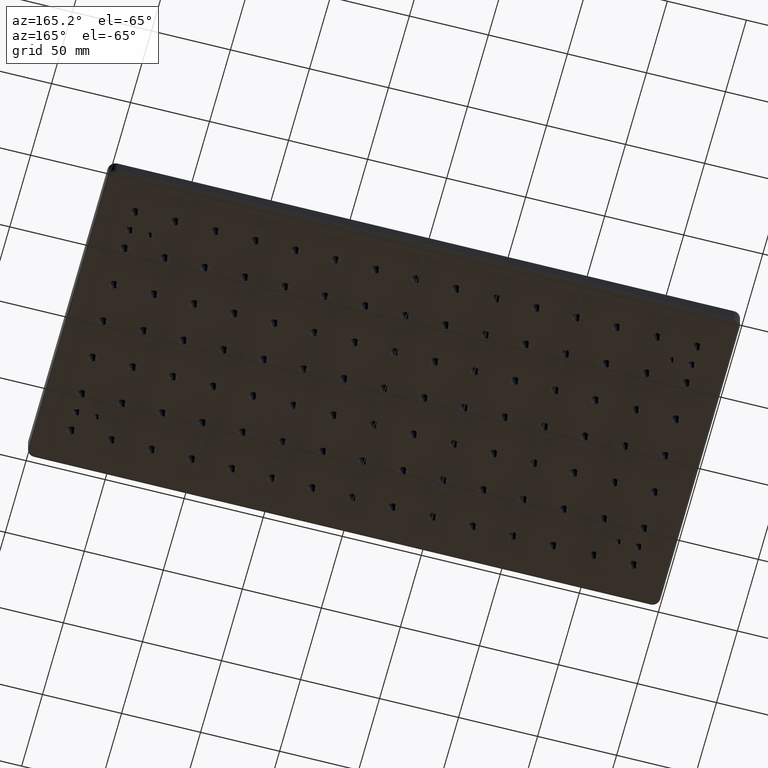
[diagram: clean part render]
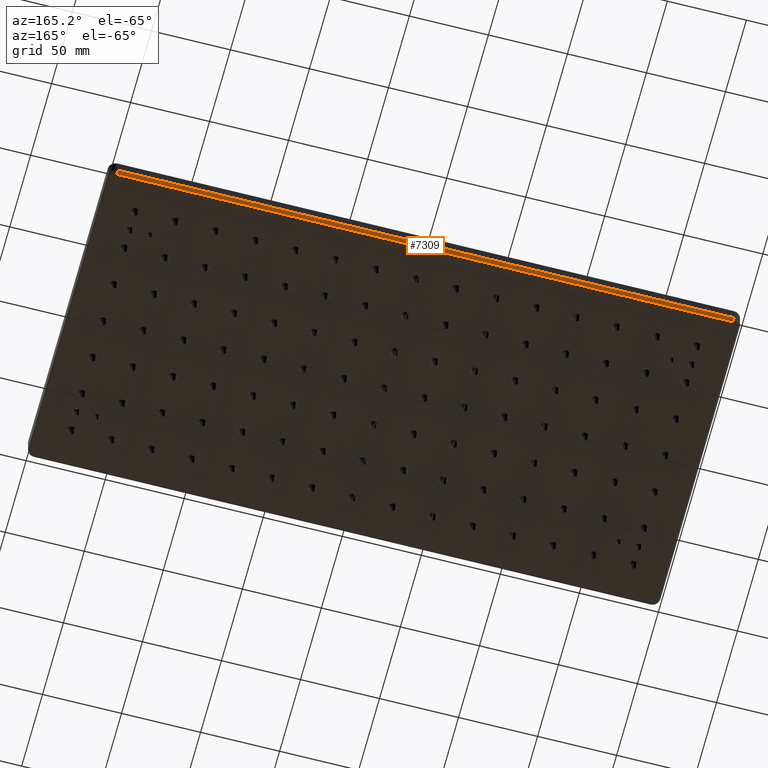
[diagram: same view with one face highlighted and labeled with its STEP entity id]
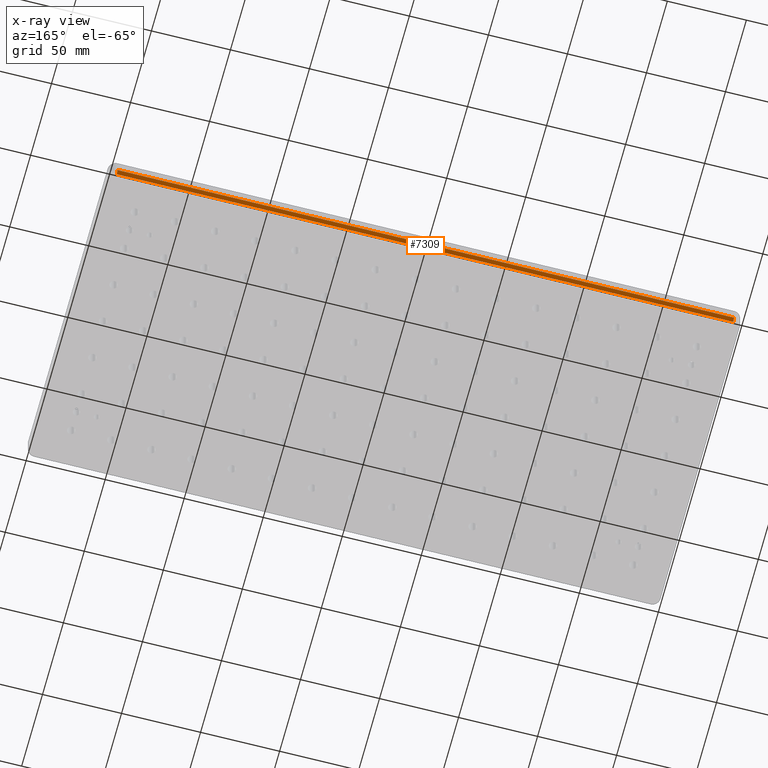
[diagram: x-ray of the same camera — body ghosted, the highlighted face saturated]
A machine part, auxiliary view. The second image highlights one B-rep face of the part: STEP entity #7309.
The next image is the same camera in x-ray: the body ghosted, the highlighted face saturated — about 0% of this face is hidden behind the body in this view.
In plain terms, the highlighted cylindrical surface (edge-blend (fillet) strip) has radius 2 mm, axis along (-1, -0, 0).
Its self-contained STEP definition (entity closure, byte-faithful):
#163 = AXIS2_PLACEMENT_3D ( 'NONE', #4067, #7021, #1893 ) ;
#314 = VECTOR ( 'NONE', #5719, 1000.000000000000000 ) ;
#688 = DIRECTION ( 'NONE',  ( 0.0000000000000000000, 0.0000000000000000000, -1.000000000000000000 ) ) ;
#779 = AXIS2_PLACEMENT_3D ( 'NONE', #3889, #7596, #3923 ) ;
#1148 = CYLINDRICAL_SURFACE ( 'NONE', #779, 2.000000000000001800 ) ;
#1441 = ORIENTED_EDGE ( 'NONE', *, *, #1507, .T. ) ;
#1507 = EDGE_CURVE ( 'NONE', #6183, #2689, #4244, .T. ) ;
#1729 = AXIS2_PLACEMENT_3D ( 'NONE', #2119, #8004, #688 ) ;
#1737 = EDGE_CURVE ( 'NONE', #2747, #7042, #8579, .T. ) ;
#1786 = LINE ( 'NONE', #4198, #314 ) ;
#1893 = DIRECTION ( 'NONE',  ( 0.0000000000000000000, 0.0000000000000000000, -1.000000000000000000 ) ) ;
#2006 = CARTESIAN_POINT ( 'NONE',  ( -195.0000000000001100, 100.0000000000000000, -11.00000000000000000 ) ) ;
#2119 = CARTESIAN_POINT ( 'NONE',  ( 195.0000000000001100, 98.00000000000004300, -11.00000000000000000 ) ) ;
#2161 = VECTOR ( 'NONE', #5824, 1000.000000000000000 ) ;
#2333 = EDGE_CURVE ( 'NONE', #7042, #2689, #8794, .T. ) ;
#2624 = ORIENTED_EDGE ( 'NONE', *, *, #1737, .F. ) ;
#2689 = VERTEX_POINT ( 'NONE', #2006 ) ;
#2747 = VERTEX_POINT ( 'NONE', #7786 ) ;
#2847 = EDGE_CURVE ( 'NONE', #6183, #2747, #1786, .T. ) ;
#3889 = CARTESIAN_POINT ( 'NONE',  ( -195.0000000000001100, 98.00000000000000000, -11.00000000000000000 ) ) ;
#3923 = DIRECTION ( 'NONE',  ( 0.0000000000000000000, -1.000000000000000000, 0.0000000000000000000 ) ) ;
#4067 = CARTESIAN_POINT ( 'NONE',  ( -195.0000000000001100, 97.99999999999997200, -11.00000000000000000 ) ) ;
#4198 = CARTESIAN_POINT ( 'NONE',  ( -195.0000000000001100, 98.00000000000000000, -13.00000000000000000 ) ) ;
#4244 = CIRCLE ( 'NONE', #163, 2.000000000000000000 ) ;
#5067 = CARTESIAN_POINT ( 'NONE',  ( -195.0000000000001100, 100.0000000000000000, -11.00000000000000000 ) ) ;
#5406 = EDGE_LOOP ( 'NONE', ( #1441, #6575, #2624, #8670 ) ) ;
#5719 = DIRECTION ( 'NONE',  ( 1.000000000000000000, 1.067522139062650100E-016, -0.0000000000000000000 ) ) ;
#5824 = DIRECTION ( 'NONE',  ( -1.000000000000000000, -1.067522139062650100E-016, 0.0000000000000000000 ) ) ;
#6183 = VERTEX_POINT ( 'NONE', #8496 ) ;
#6575 = ORIENTED_EDGE ( 'NONE', *, *, #2333, .F. ) ;
#7021 = DIRECTION ( 'NONE',  ( 1.000000000000000000, -0.0000000000000000000, 0.0000000000000000000 ) ) ;
#7042 = VERTEX_POINT ( 'NONE', #7120 ) ;
#7120 = CARTESIAN_POINT ( 'NONE',  ( 195.0000000000001100, 100.0000000000000100, -11.00000000000000000 ) ) ;
#7309 = ADVANCED_FACE ( 'NONE', ( #7680 ), #1148, .T. ) ;
#7596 = DIRECTION ( 'NONE',  ( -1.000000000000000000, -1.067522139062650100E-016, 0.0000000000000000000 ) ) ;
#7680 = FACE_OUTER_BOUND ( 'NONE', #5406, .T. ) ;
#7786 = CARTESIAN_POINT ( 'NONE',  ( 195.0000000000001100, 98.00000000000001400, -13.00000000000000000 ) ) ;
#8004 = DIRECTION ( 'NONE',  ( 1.000000000000000000, -0.0000000000000000000, 0.0000000000000000000 ) ) ;
#8496 = CARTESIAN_POINT ( 'NONE',  ( -195.0000000000001100, 98.00000000000000000, -13.00000000000000000 ) ) ;
#8579 = CIRCLE ( 'NONE', #1729, 2.000000000000000000 ) ;
#8670 = ORIENTED_EDGE ( 'NONE', *, *, #2847, .F. ) ;
#8794 = LINE ( 'NONE', #5067, #2161 ) ;